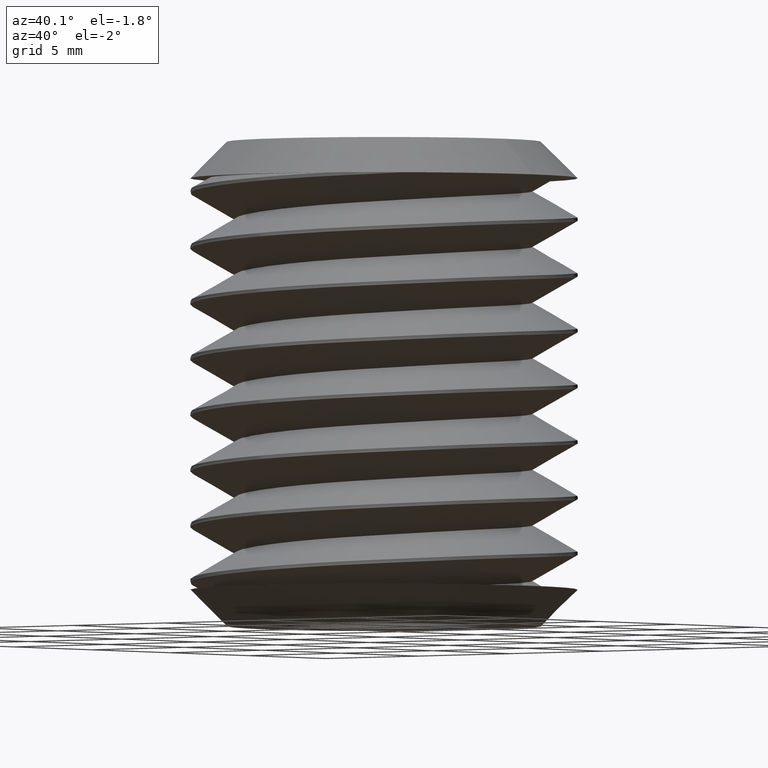
[diagram: clean part render]
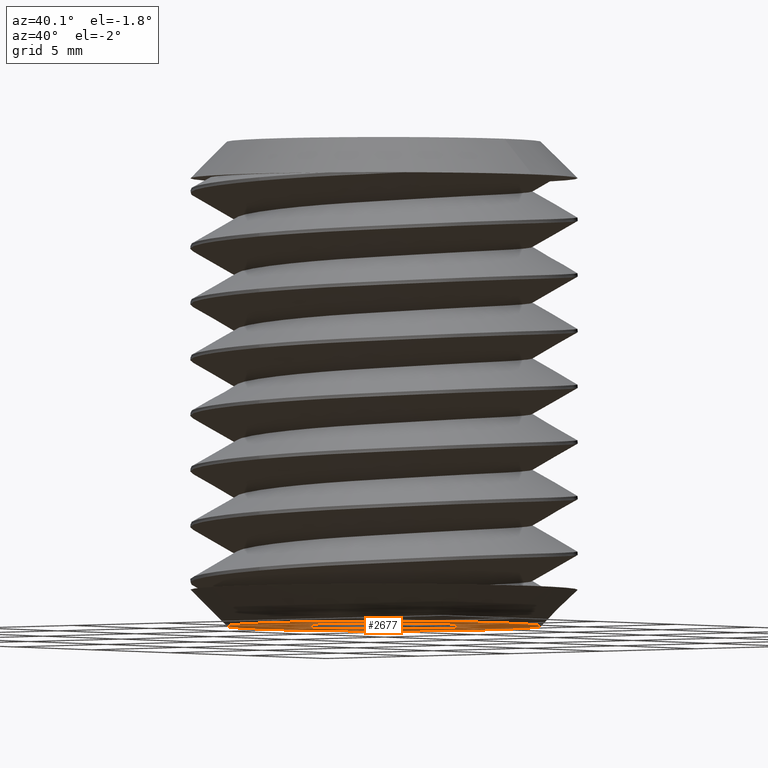
[diagram: same view with one face highlighted and labeled with its STEP entity id]
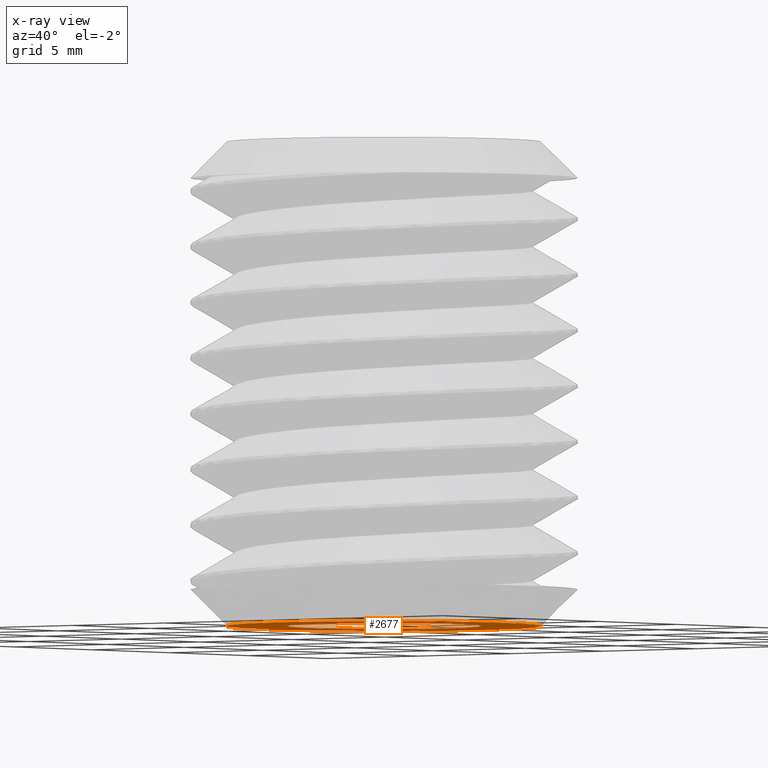
[diagram: x-ray of the same camera — body ghosted, the highlighted face saturated]
A machine part, auxiliary view. The second image highlights one B-rep face of the part: STEP entity #2677.
The next image is the same camera in x-ray: the body ghosted, the highlighted face saturated — about 0% of this face is hidden behind the body in this view.
In plain terms, the highlighted planar face has unit normal (0, 0, 1).
Its self-contained STEP definition (entity closure, byte-faithful):
#583 = CARTESIAN_POINT ( 'NONE',  ( -4.000000000000000000, 0.0000000000000000000, -20.00000000000000000 ) ) ;
#588 = CARTESIAN_POINT ( 'NONE',  ( 4.000000000000000000, 4.898587196589412800E-016, -20.00000000000000000 ) ) ;
#589 = CARTESIAN_POINT ( 'NONE',  ( 0.0000000000000000000, -6.499999999999983100, -20.00000000000001800 ) ) ;
#598 = CARTESIAN_POINT ( 'NONE',  ( 8.878689293776080400E-016, 6.499999999999983100, -20.00000000000001800 ) ) ;
#712 = CARTESIAN_POINT ( 'NONE',  ( 0.0000000000000000000, 0.0000000000000000000, -20.00000000000000000 ) ) ;
#713 = DIRECTION ( 'NONE',  ( 0.0000000000000000000, 0.0000000000000000000, -1.000000000000000000 ) ) ;
#714 = DIRECTION ( 'NONE',  ( -1.000000000000000000, 0.0000000000000000000, 0.0000000000000000000 ) ) ;
#721 = CARTESIAN_POINT ( 'NONE',  ( 0.0000000000000000000, 4.629639289202483000E-030, -20.00000000000001800 ) ) ;
#722 = DIRECTION ( 'NONE',  ( -0.0000000000000000000, 2.668805347656626200E-016, -1.000000000000000000 ) ) ;
#723 = DIRECTION ( 'NONE',  ( 0.0000000000000000000, -1.000000000000000000, 0.0000000000000000000 ) ) ;
#865 = EDGE_CURVE ( 'NONE', #2794, #2788, #1634, .T. ) ;
#1120 = DIRECTION ( 'NONE',  ( -1.000000000000000000, 0.0000000000000000000, 0.0000000000000000000 ) ) ;
#1121 = CARTESIAN_POINT ( 'NONE',  ( 0.0000000000000000000, 0.0000000000000000000, -20.00000000000000000 ) ) ;
#1122 = DIRECTION ( 'NONE',  ( 0.0000000000000000000, 0.0000000000000000000, -1.000000000000000000 ) ) ;
#1527 = CIRCLE ( 'NONE', #2648, 6.499999999999983100 ) ;
#1541 = FACE_OUTER_BOUND ( 'NONE', #1589, .T. ) ;
#1542 = FACE_BOUND ( 'NONE', #1591, .T. ) ;
#1558 = CIRCLE ( 'NONE', #2629, 6.499999999999983100 ) ;
#1589 = EDGE_LOOP ( 'NONE', ( #2180, #2179 ) ) ;
#1591 = EDGE_LOOP ( 'NONE', ( #2182, #2181 ) ) ;
#1634 = CIRCLE ( 'NONE', #2621, 4.000000000000000000 ) ;
#1697 = CIRCLE ( 'NONE', #2626, 4.000000000000000000 ) ;
#1972 = CARTESIAN_POINT ( 'NONE',  ( 0.0000000000000000000, 4.629639289202483000E-030, -20.00000000000001800 ) ) ;
#1973 = DIRECTION ( 'NONE',  ( -0.0000000000000000000, 2.668805347656626200E-016, -1.000000000000000000 ) ) ;
#1974 = DIRECTION ( 'NONE',  ( 0.0000000000000000000, -1.000000000000000000, 0.0000000000000000000 ) ) ;
#2179 = ORIENTED_EDGE ( 'NONE', *, *, #2743, .T. ) ;
#2180 = ORIENTED_EDGE ( 'NONE', *, *, #2607, .T. ) ;
#2181 = ORIENTED_EDGE ( 'NONE', *, *, #865, .F. ) ;
#2182 = ORIENTED_EDGE ( 'NONE', *, *, #2604, .F. ) ;
#2339 = PLANE ( 'NONE',  #2643 ) ;
#2340 = CARTESIAN_POINT ( 'NONE',  ( -6.578000000000000300, -6.578000000000000300, -20.00000000000000000 ) ) ;
#2341 = DIRECTION ( 'NONE',  ( 0.0000000000000000000, 0.0000000000000000000, 1.000000000000000000 ) ) ;
#2342 = DIRECTION ( 'NONE',  ( 1.000000000000000000, 0.0000000000000000000, 0.0000000000000000000 ) ) ;
#2604 = EDGE_CURVE ( 'NONE', #2788, #2794, #1697, .T. ) ;
#2607 = EDGE_CURVE ( 'NONE', #2795, #2804, #1558, .T. ) ;
#2621 = AXIS2_PLACEMENT_3D ( 'NONE', #1121, #1122, #1120 ) ;
#2626 = AXIS2_PLACEMENT_3D ( 'NONE', #712, #713, #714 ) ;
#2629 = AXIS2_PLACEMENT_3D ( 'NONE', #721, #722, #723 ) ;
#2643 = AXIS2_PLACEMENT_3D ( 'NONE', #2340, #2341, #2342 ) ;
#2648 = AXIS2_PLACEMENT_3D ( 'NONE', #1972, #1973, #1974 ) ;
#2677 = ADVANCED_FACE ( 'NONE', ( #1542, #1541 ), #2339, .F. ) ;
#2743 = EDGE_CURVE ( 'NONE', #2804, #2795, #1527, .T. ) ;
#2788 = VERTEX_POINT ( 'NONE', #583 ) ;
#2794 = VERTEX_POINT ( 'NONE', #588 ) ;
#2795 = VERTEX_POINT ( 'NONE', #589 ) ;
#2804 = VERTEX_POINT ( 'NONE', #598 ) ;